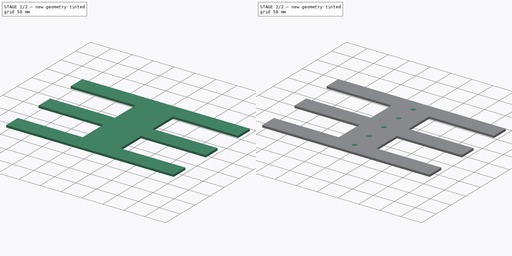
[diagram: build sequence overview — one tinted view per stage of 2, left to right]
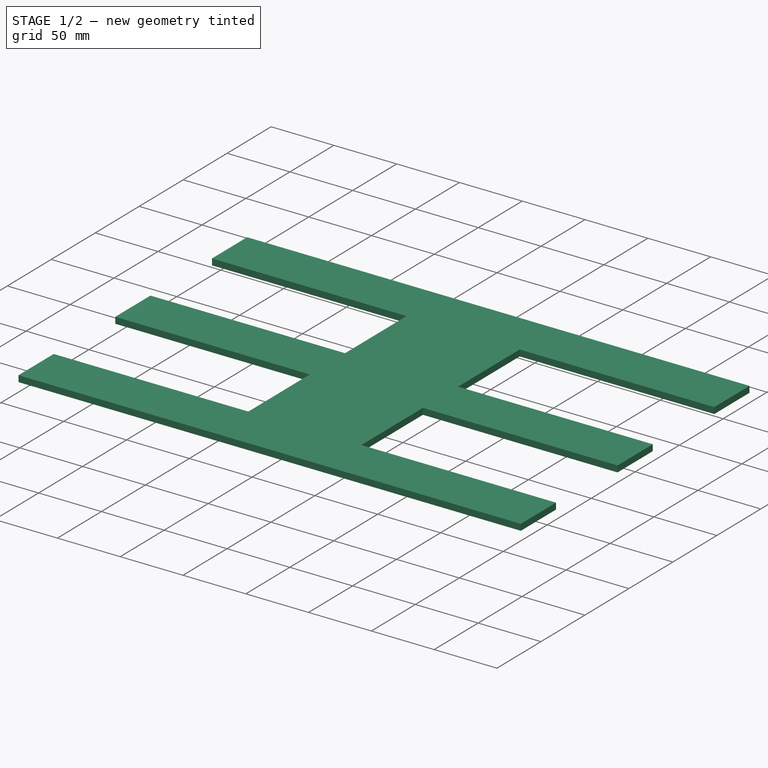
[diagram: stage 1 of 2 — iso view after this stage's code; geometry added in this stage tinted green]
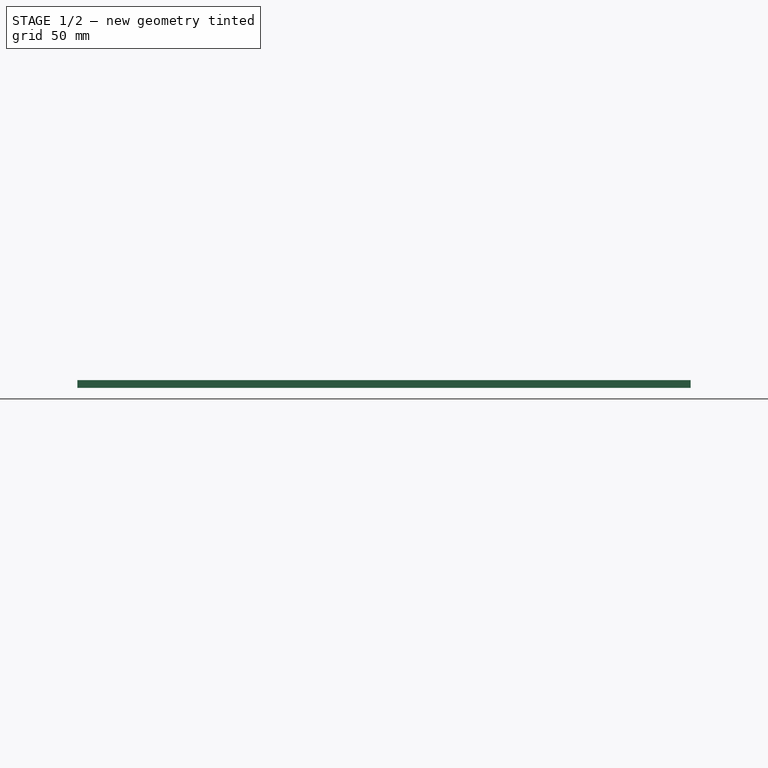
[diagram: stage 1 of 2 — front view after this stage's code; geometry added in this stage tinted green]
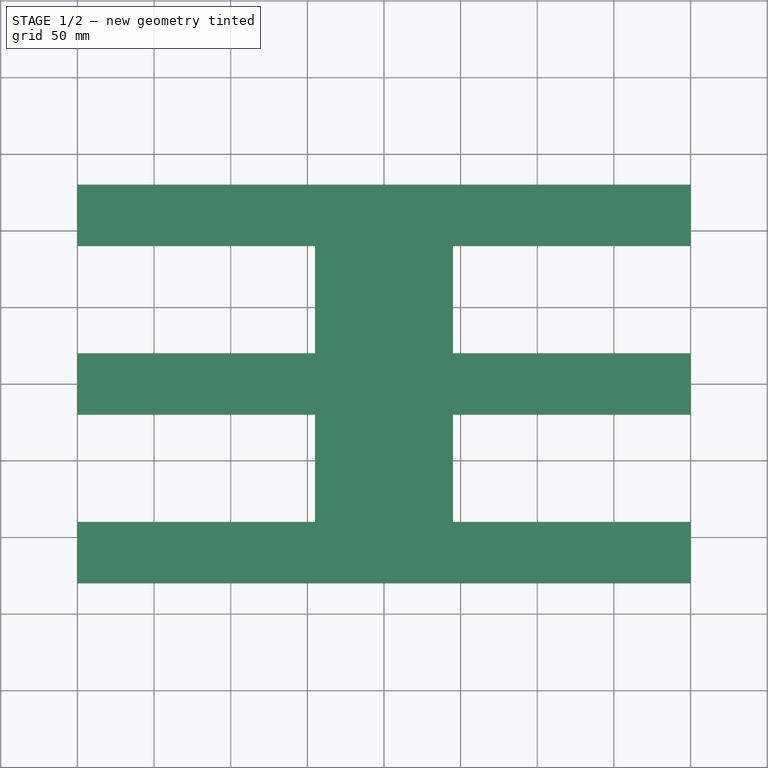
[diagram: stage 1 of 2 — top view after this stage's code; geometry added in this stage tinted green]
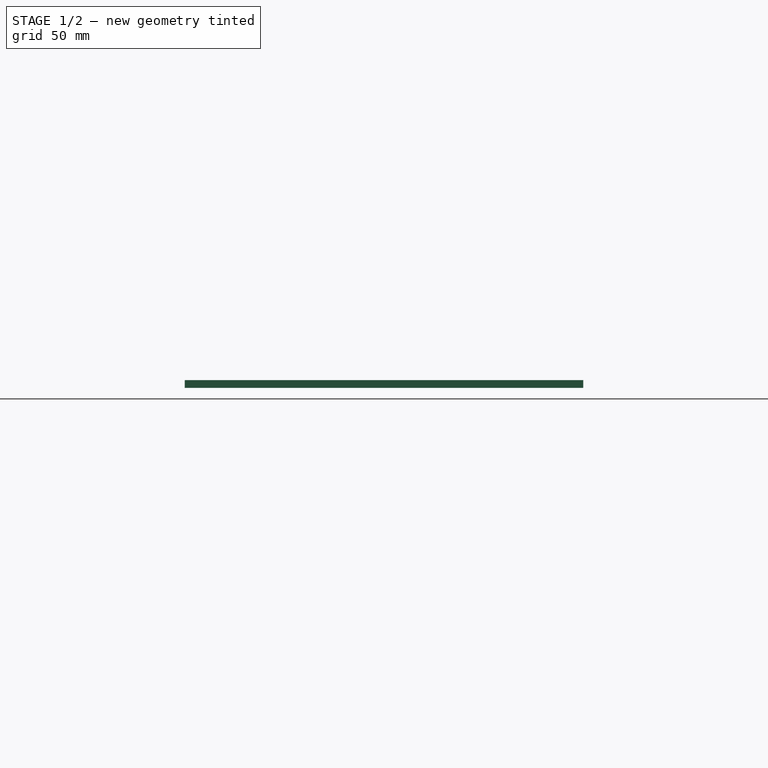
[diagram: stage 1 of 2 — right view after this stage's code; geometry added in this stage tinted green]
FCSTD DOCUMENT  (FreeCAD 0.19R24267 (Git))
Label: Platte
License: All rights reserved
LicenseURL: http://en.wikipedia.org/wiki/All_rights_reserved
objects: Sketcher::SketchObject×2, PartDesign::Pad×1, PartDesign::Hole×1, PartDesign::Body×1
note: 7 computed .brp shape members not serialized (recipe doc carries the construction recipe); baked Part::Feature solids carry a one-line shape summary decoded from their .brp

FEATURE [Sketcher::SketchObject] Sketch
  FullyConstrained = true
  MapMode = 5
  Support = -> [XY_Plane]
  sketch-geometry (20):
    g0: LineSegment StartX=-200 StartY=130 StartZ=0 EndX=200 EndY=130 EndZ=0
    g1: LineSegment StartX=200 StartY=130 StartZ=0 EndX=200 EndY=90 EndZ=0
    g2: LineSegment StartX=200 StartY=90 StartZ=0 EndX=45 EndY=90 EndZ=0
    g3: LineSegment StartX=45 StartY=90 StartZ=0 EndX=45 EndY=20 EndZ=0
    g4: LineSegment StartX=45 StartY=20 StartZ=0 EndX=200 EndY=20 EndZ=0
    g5: LineSegment StartX=200 StartY=20 StartZ=0 EndX=200 EndY=-20 EndZ=0
    g6: LineSegment StartX=200 StartY=-20 StartZ=0 EndX=45 EndY=-20 EndZ=0
    g7: LineSegment StartX=45 StartY=-20 StartZ=0 EndX=45 EndY=-90 EndZ=0
    g8: LineSegment StartX=45 StartY=-90 StartZ=0 EndX=200 EndY=-90 EndZ=0
    g9: LineSegment StartX=200 StartY=-90 StartZ=0 EndX=200 EndY=-130 EndZ=0
    g10: LineSegment StartX=200 StartY=-130 StartZ=0 EndX=-200 EndY=-130 EndZ=0
    g11: LineSegment StartX=-200 StartY=-130 StartZ=0 EndX=-200 EndY=-90 EndZ=0
    g12: LineSegment StartX=-200 StartY=-90 StartZ=0 EndX=-45 EndY=-90 EndZ=0
    g13: LineSegment StartX=-45 StartY=-90 StartZ=0 EndX=-45 EndY=-20 EndZ=0
    g14: LineSegment StartX=-45 StartY=-20 StartZ=0 EndX=-200 EndY=-20 EndZ=0
    g15: LineSegment StartX=-200 StartY=-20 StartZ=0 EndX=-200 EndY=20 EndZ=0
    g16: LineSegment StartX=-200 StartY=20 StartZ=0 EndX=-45 EndY=20 EndZ=0
    g17: LineSegment StartX=-45 StartY=20 StartZ=0 EndX=-45 EndY=90 EndZ=0
    g18: LineSegment StartX=-45 StartY=90 StartZ=0 EndX=-200 EndY=90 EndZ=0
    g19: LineSegment StartX=-200 StartY=90 StartZ=0 EndX=-200 EndY=130 EndZ=0
  constraints (58):
    c: Coincident(g1,g0)
    c: Vertical(g1)
    c: Coincident(g2,g1)
    c: Horizontal(g2)
    c: Coincident(g3,g2)
    c: Vertical(g3)
    c: Coincident(g4,g3)
    c: Horizontal(g4)
    c: Coincident(g5,g4)
    c: Vertical(g5)
    c: Coincident(g6,g5)
    c: Horizontal(g6)
    c: Coincident(g7,g6)
    c: Vertical(g7)
    c: Coincident(g8,g7)
    c: Horizontal(g8)
    c: Coincident(g9,g8)
    c: Vertical(g9)
    c: Coincident(g10,g9)
    c: Horizontal(g10)
    c: Coincident(g18,g17)
    c: Horizontal(g18)
    c: Coincident(g19,g18)
    c: Coincident(g19,g0)
    c: Vertical(g19)
    c: Horizontal(g12)
    c: Equal(g18,g16)
    c: Equal(g16,g14)
    c: Equal(g14,g12)
    c: Equal(g12,g8)
    c: Equal(g8,g6)
    c: Equal(g6,g4)
    c: Equal(g4,g2)
    c: Equal(g19,g15)
    c: Equal(g15,g11)
    c: Equal(g11,g9)
    c: Equal(g9,g5)
    c: Equal(g5,g1)
    c: Equal(g13,g7)
    c: Equal(g7,g3)
    c: Symmetric(g0,g0,g-2)
    c: DistanceY(g19,g19) = 40
    c: DistanceX(g0,g0) = 400
    c: DistanceX(g12,g7) = 90
    c: DistanceY(g10,g0) = 260
    c: Symmetric(g10,g0,g-1)
    c: Coincident(g12,g11)
    c: Coincident(g11,g10)
    c: Vertical(g11)
    c: Coincident(g13,g12)
    c: Coincident(g13,g14)
    c: Coincident(g16,g15)
    c: Coincident(g16,g17)
    c: Coincident(g15,g14)
    c: Vertical(g13)
    c: Horizontal(g14)
    c: Vertical(g15)
    c: Horizontal(g16)
FEATURE [PartDesign::Pad] Pad  label="platte"
  Direction = (1,1,1)
  Length = 5
  Length2 = 100
  Profile = -> Sketch
  Type = 0
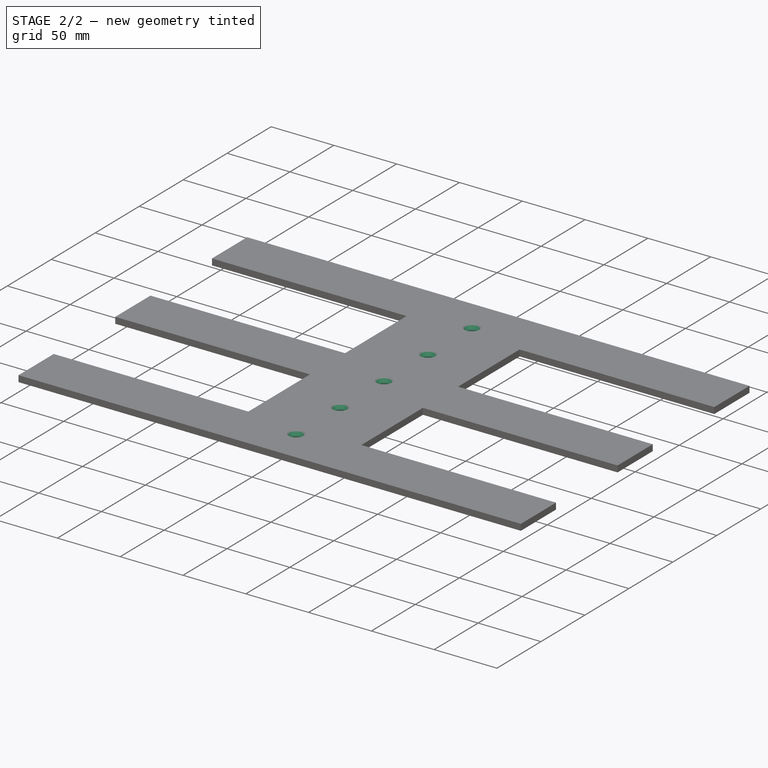
[diagram: stage 2 of 2 — iso view after this stage's code; geometry added in this stage tinted green]
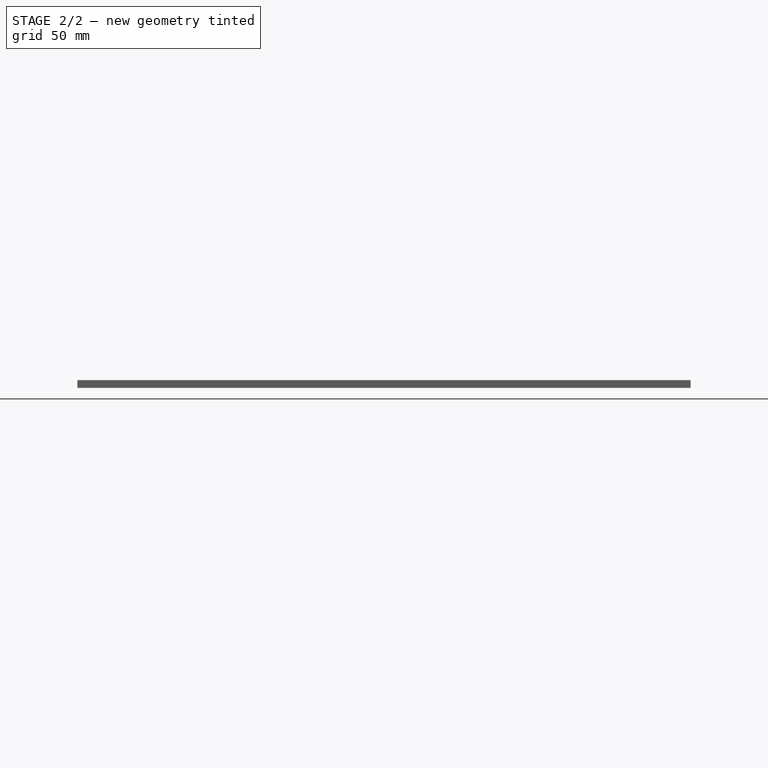
[diagram: stage 2 of 2 — front view after this stage's code; geometry added in this stage tinted green]
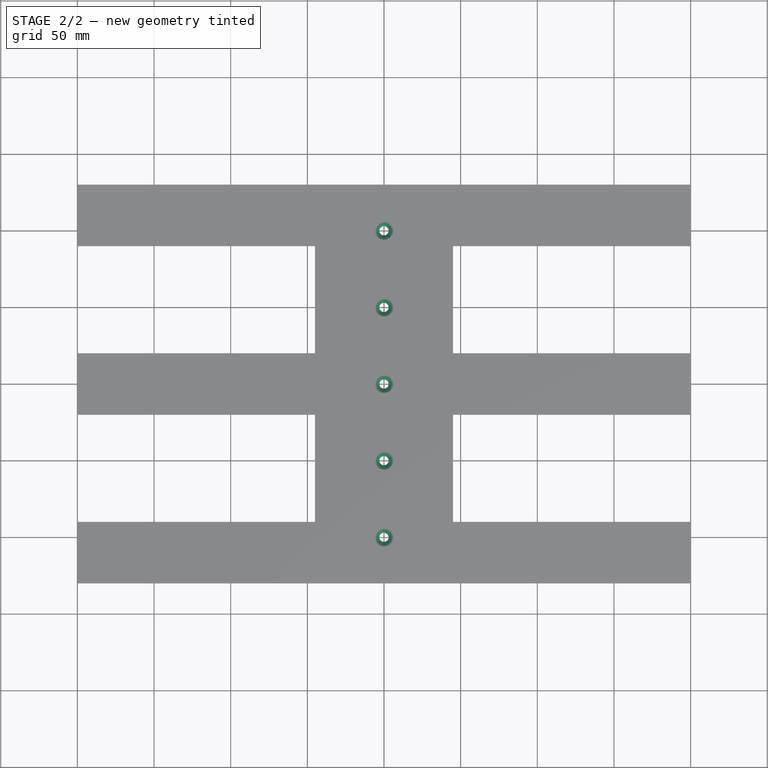
[diagram: stage 2 of 2 — top view after this stage's code; geometry added in this stage tinted green]
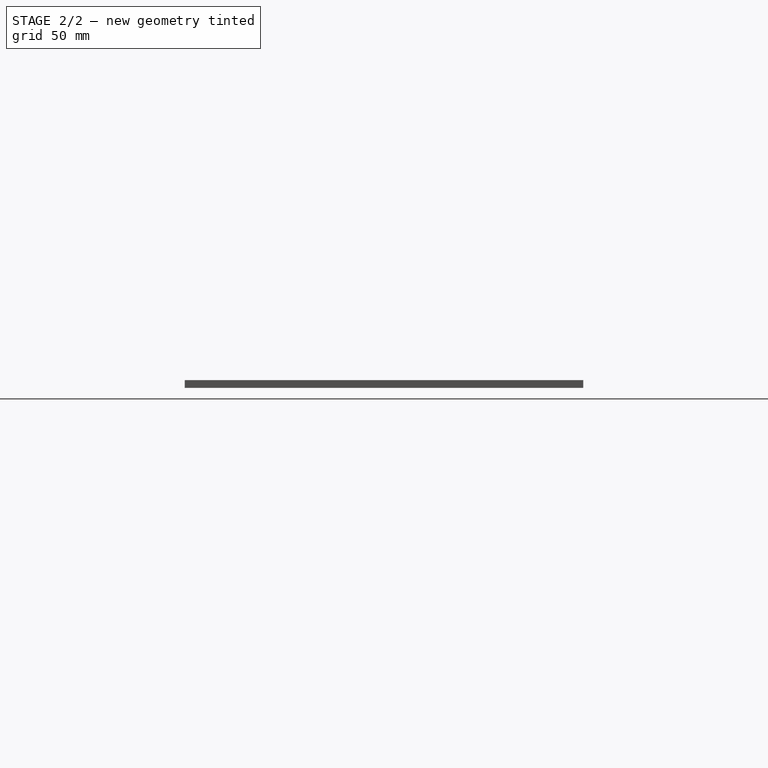
[diagram: stage 2 of 2 — right view after this stage's code; geometry added in this stage tinted green]
FEATURE [Sketcher::SketchObject] Sketch001
  AttachmentOffset = pos=(0,0,5) rot=(0,0,1;0rad)
  FullyConstrained = true
  MapMode = 5
  Placement = pos=(0,0,5) rot=(0,0,1;0rad)
  Support = -> [XY_Plane]
  sketch-geometry (5):
    g0: Circle CenterX=0 CenterY=0 CenterZ=0 NormalX=0 NormalY=0 NormalZ=1 AngleXU=0 Radius=3
    g1: Circle CenterX=0 CenterY=50 CenterZ=0 NormalX=0 NormalY=0 NormalZ=1 AngleXU=0 Radius=3
    g2: Circle CenterX=0 CenterY=100 CenterZ=0 NormalX=0 NormalY=0 NormalZ=1 AngleXU=0 Radius=3
    g3: Circle CenterX=0 CenterY=-50 CenterZ=0 NormalX=0 NormalY=0 NormalZ=1 AngleXU=0 Radius=3
    g4: Circle CenterX=0 CenterY=-100 CenterZ=0 NormalX=0 NormalY=0 NormalZ=1 AngleXU=0 Radius=3
  constraints (12):
    c: Coincident(g0,g-1)
    c: PointOnObject(g1,g-2)
    c: PointOnObject(g2,g-2)
    c: Equal(g2,g1)
    c: Equal(g1,g0)
    c: Equal(g0,g3)
    c: Equal(g3,g4)
    c: Symmetric(g2,g4,g-1)
    c: Symmetric(g1,g3,g-1)
    c: DistanceY(g0,g1) = 50
    c: DistanceY(g1,g2) = 50
    c: Diameter(g2) = 6
FEATURE [PartDesign::Hole] Hole
  BaseFeature = -> Pad
  Depth = 25
  DepthType = 0
  Diameter = 6
  DrillForDepth = false
  DrillPoint = 1
  DrillPointAngle = 118
  HoleCutCountersinkAngle = 90
  HoleCutCustomValues = false
  HoleCutDepth = 0
  HoleCutDiameter = 12
  HoleCutType = 2
  ModelActualThread = false
  Profile = -> Sketch001
  Tapered = false
  TaperedAngle = 90
  ThreadAngle = 0
  ThreadClass = 0
  ThreadCutOffInner = 0
  ThreadCutOffOuter = 0
  ThreadDirection = 0
  ThreadFit = 0
  ThreadPitch = 0
  ThreadSize = 0
  ThreadType = 0
  Threaded = false
FEATURE [PartDesign::Body] Body
  Group = -> [Sketch,Pad,Sketch001,Hole]
  Origin = -> Origin
  Tip = -> Hole
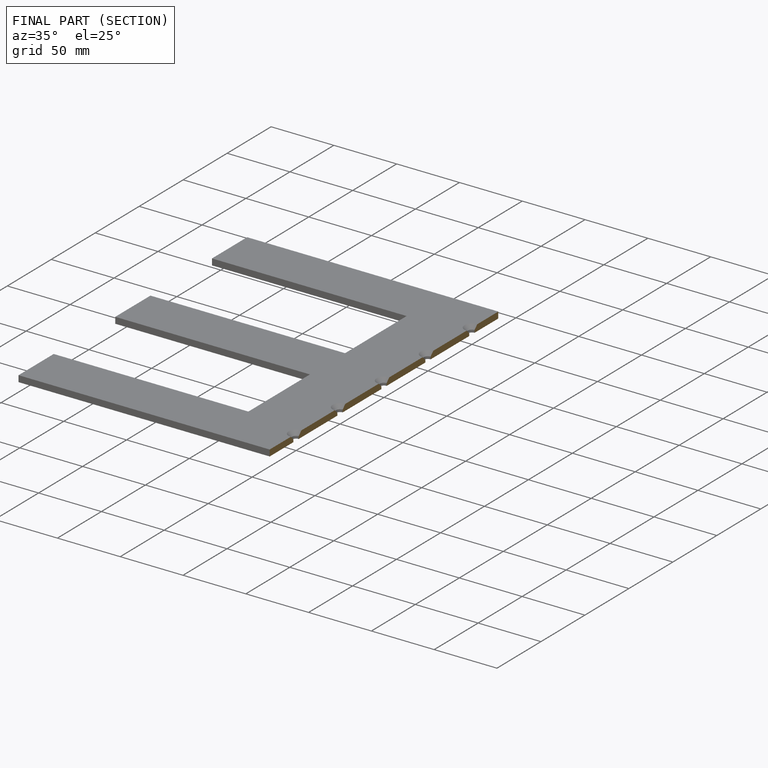
[diagram: finished part — half-section view (interior)]
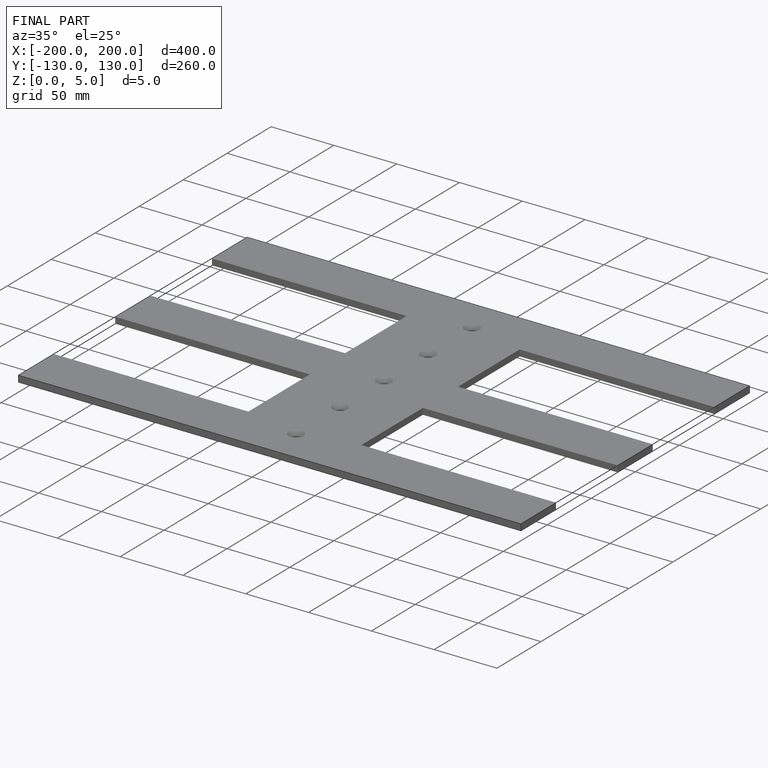
[diagram: finished part — iso view with bounding-box wireframe]
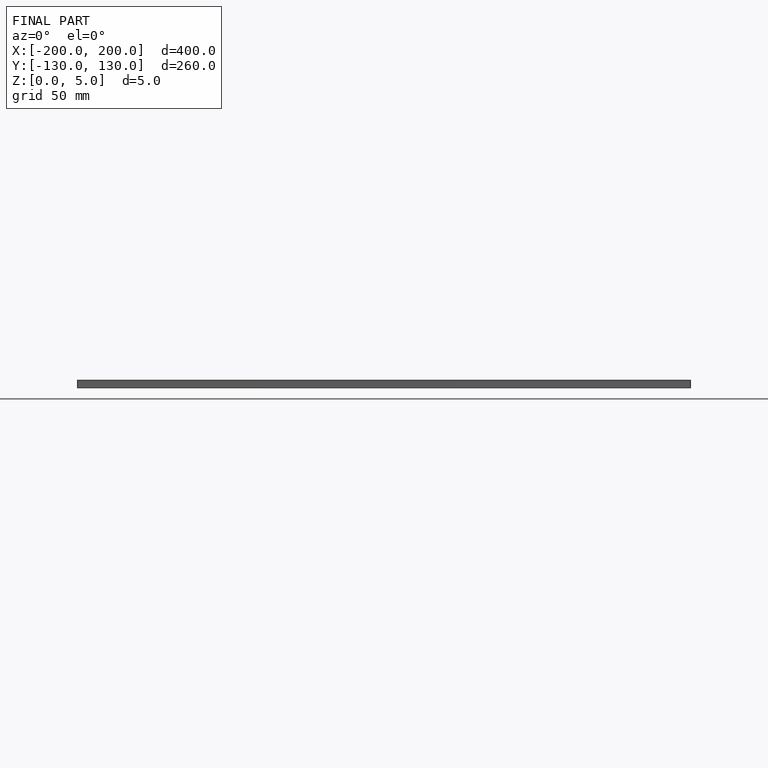
[diagram: finished part — front view with bounding-box wireframe]
